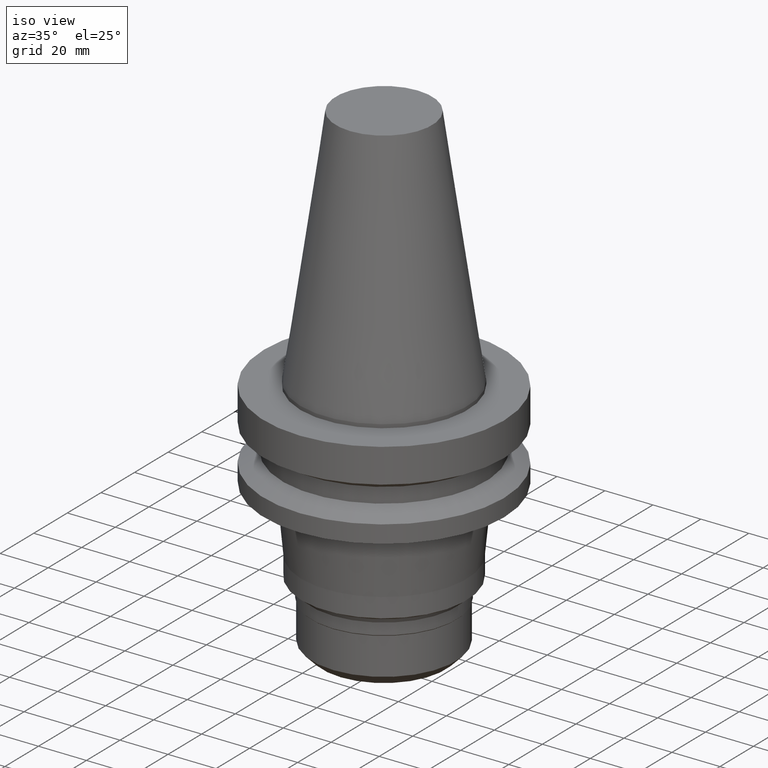
[diagram: clean part render]
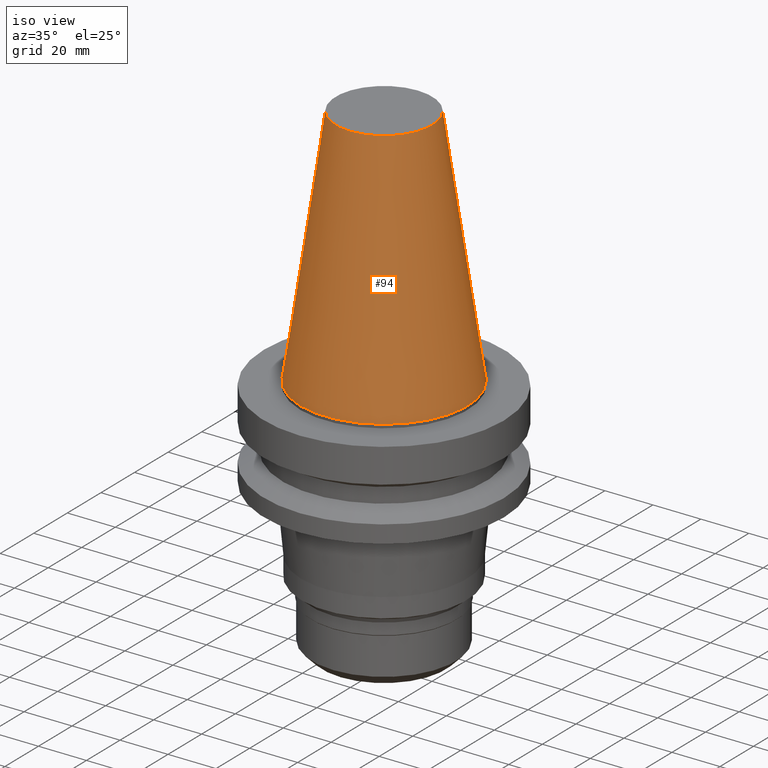
[diagram: tour spotlight — one face highlighted and labeled with its STEP entity id]
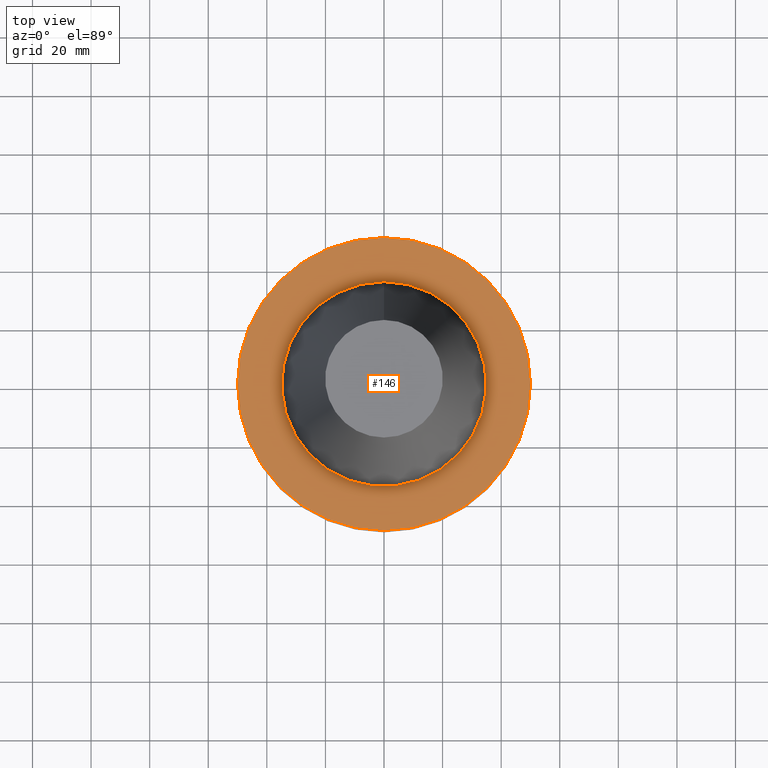
[diagram: tour spotlight — one face highlighted and labeled with its STEP entity id]
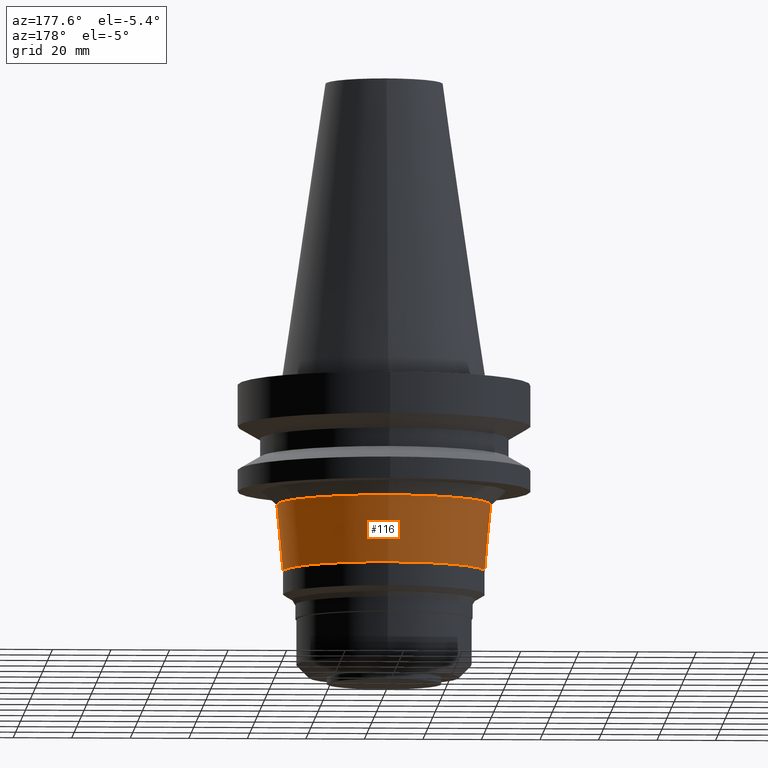
[diagram: tour spotlight — one face highlighted and labeled with its STEP entity id]
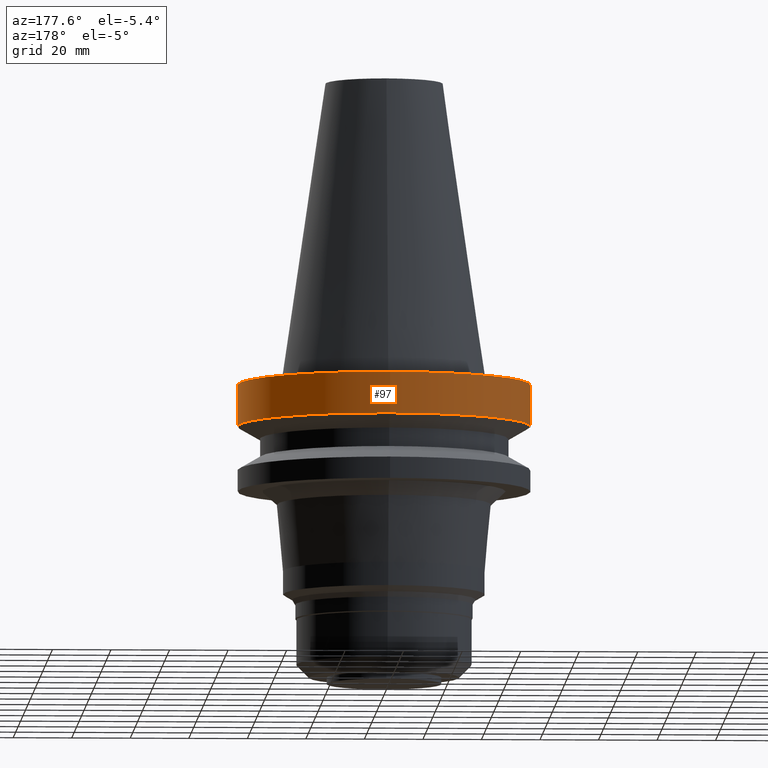
[diagram: tour spotlight — one face highlighted and labeled with its STEP entity id]
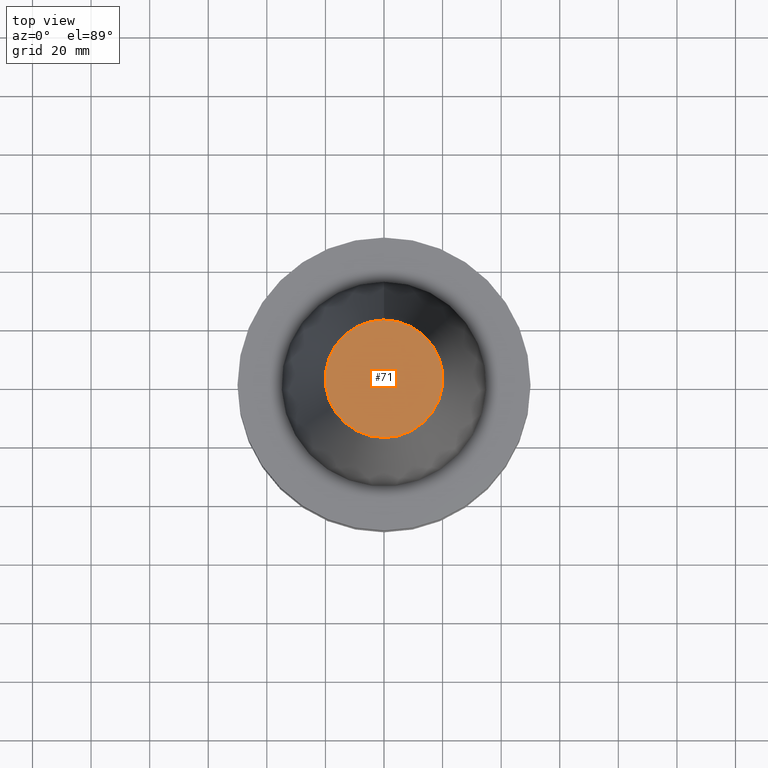
[diagram: tour spotlight — one face highlighted and labeled with its STEP entity id]
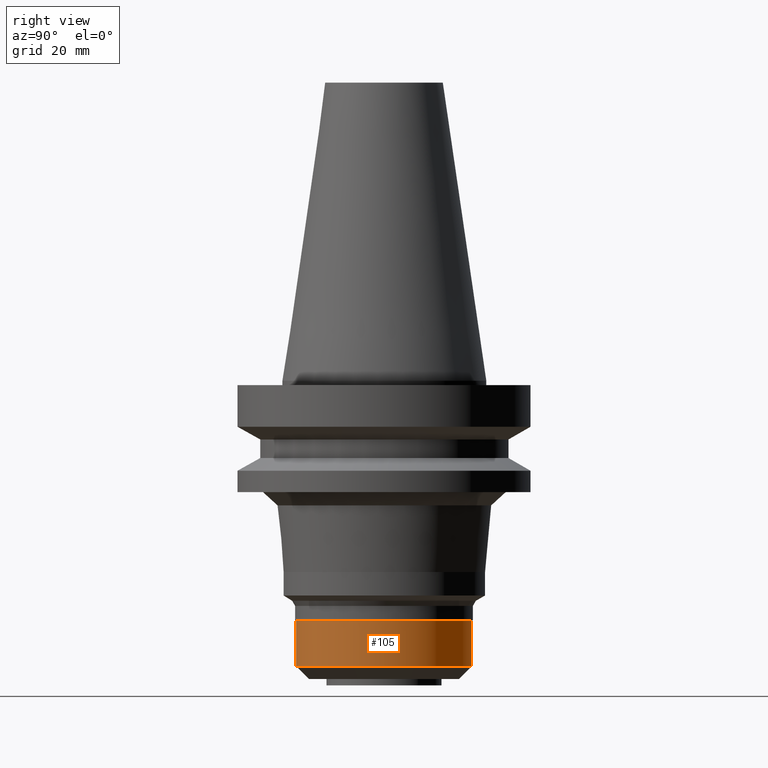
[diagram: tour spotlight — one face highlighted and labeled with its STEP entity id]
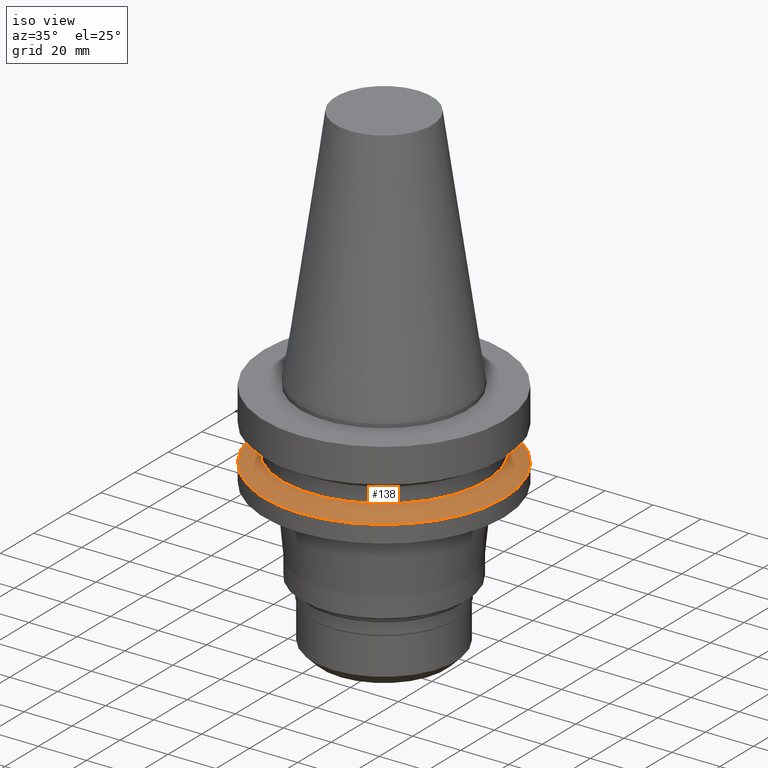
[diagram: tour spotlight — one face highlighted and labeled with its STEP entity id]
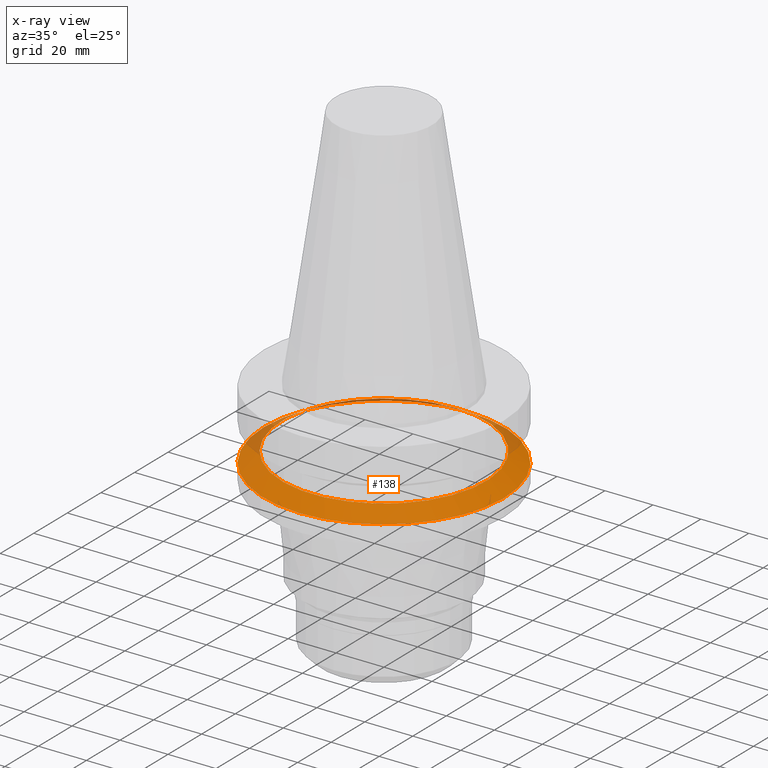
[diagram: x-ray of the same camera — body ghosted, this tour face saturated]
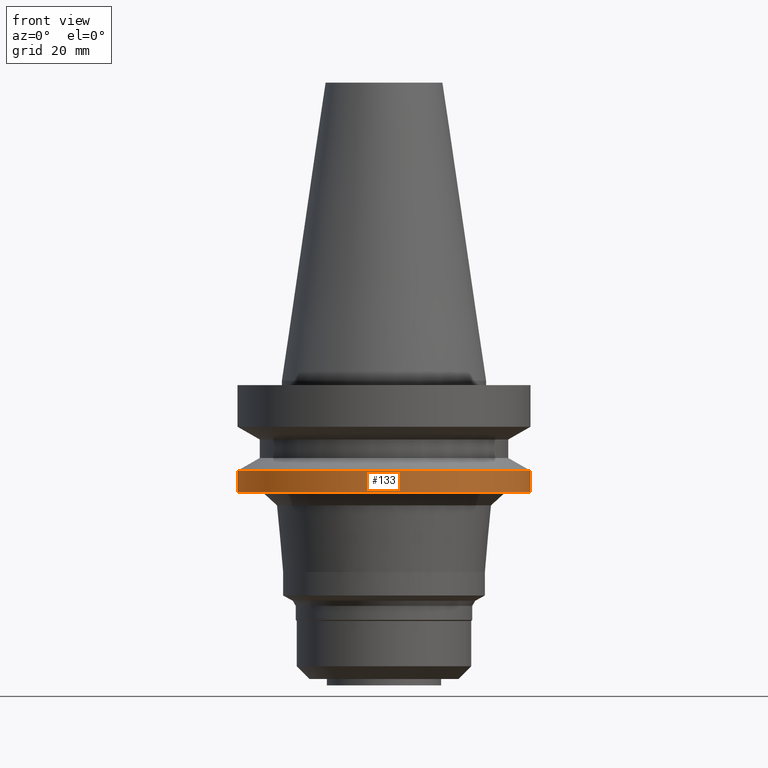
[diagram: tour spotlight — one face highlighted and labeled with its STEP entity id]
A machine part: a face-by-face anatomy tour. The part has 22 B-rep faces; the first image is the clean iso view, then the 8 largest visible faces are spotlighted one at a time (largest first), each with its STEP entity span.

Face 1 — iso view, entity #94. In plain terms, the highlighted conical surface has half-angle 8.297 deg.
Definition (entity closure, byte-faithful):
#86=EDGE_CURVE('Unnamed[1]',#222,#222,#223,.T.);
#94=ADVANCED_FACE('Unnamed[1]',(#232,#233),#234,.T.);
#135=EDGE_CURVE('Unnamed[1]',#299,#299,#300,.T.);
#222=VERTEX_POINT('',#411);
#223=CIRCLE('',#412,20.0791666651884);
#232=FACE_BOUND('',#423,.T.);
#233=FACE_BOUND('',#424,.T.);
#234=CONICAL_SURFACE('',#425,27.5020833325942,0.144812498253157);
#299=VERTEX_POINT('',#506);
#300=CIRCLE('',#507,34.925);
#411=CARTESIAN_POINT('',(-6.23345220766003E-015,20.0791666651884,101.8));
#412=AXIS2_PLACEMENT_3D('',#621,#622,#623);
#423=EDGE_LOOP('',(#629));
#424=EDGE_LOOP('',(#630));
#425=AXIS2_PLACEMENT_3D('',#631,#632,#633);
#506=CARTESIAN_POINT('',(-4.30483861169435E-031,34.925,4.27707894602213E-015));
#507=AXIS2_PLACEMENT_3D('',#706,#707,#708);
#621=CARTESIAN_POINT('',(-6.23345220766003E-015,-1.24669044153201E-014,101.8));
#622=DIRECTION('',(6.12323399573677E-017,1.22464679914713E-016,-1.0));
#623=DIRECTION('',(-1.23259516440767E-032,1.0,1.22464679914713E-016));
#629=ORIENTED_EDGE('',*,*,#135,.F.);
#630=ORIENTED_EDGE('',*,*,#86,.T.);
#631=CARTESIAN_POINT('',(-3.11672610383001E-015,-6.23345220766003E-015,50.9));
#632=DIRECTION('',(6.12323399573677E-017,1.22464679914678E-016,-1.0));
#633=DIRECTION('',(-1.232595164408E-032,1.0,1.22464679914678E-016));
#706=CARTESIAN_POINT('',(0.0,0.0,0.0));
#707=DIRECTION('',(6.12323399573677E-017,1.22464679914705E-016,-1.0));
#708=DIRECTION('',(-1.23259516440793E-032,1.0,1.22464679914705E-016));

Face 2 — top view, entity #146. In plain terms, the highlighted planar face has unit normal (-0, -0, 1).
Definition (entity closure, byte-faithful):
#76=EDGE_CURVE('Unnamed[1]',#207,#207,#208,.T.);
#146=ADVANCED_FACE('Unnamed[1]',(#316,#317),#318,.T.);
#177=EDGE_CURVE('Unnamed[1]',#366,#366,#367,.T.);
#207=VERTEX_POINT('',#391);
#208=CIRCLE('',#392,34.925);
#316=FACE_OUTER_BOUND('',#527,.T.);
#317=FACE_BOUND('',#528,.T.);
#318=PLANE('',#529);
#366=VERTEX_POINT('',#589);
#367=CIRCLE('',#590,50.0);
#391=CARTESIAN_POINT('',(9.18485099360511E-017,34.925,-1.5));
#392=AXIS2_PLACEMENT_3D('',#606,#607,#608);
#527=EDGE_LOOP('',(#725));
#528=EDGE_LOOP('',(#726));
#529=AXIS2_PLACEMENT_3D('',#727,#728,#729);
#589=CARTESIAN_POINT('',(9.18485099360509E-017,50.0,-1.49999999999999));
#590=AXIS2_PLACEMENT_3D('',#783,#784,#785);
#606=CARTESIAN_POINT('',(9.18485099360515E-017,1.83697019872103E-016,-1.5));
#607=DIRECTION('',(6.12323399573677E-017,1.22464679914705E-016,-1.0));
#608=DIRECTION('',(-1.23259516440793E-032,1.0,1.22464679914705E-016));
#725=ORIENTED_EDGE('',*,*,#177,.F.);
#726=ORIENTED_EDGE('',*,*,#76,.T.);
#727=CARTESIAN_POINT('',(9.1848509936051E-017,42.4625,-1.49999999999999));
#728=DIRECTION('',(-6.12323399573677E-017,-1.22464679914735E-016,1.0));
#729=DIRECTION('',(1.23259516440783E-032,-1.0,-1.22464679914735E-016));
#783=CARTESIAN_POINT('',(9.18485099360515E-017,1.83697019872103E-016,-1.5));
#784=DIRECTION('',(6.12323399573677E-017,1.22464679914672E-016,-1.0));
#785=DIRECTION('',(-1.23259516440783E-032,1.0,1.22464679914672E-016));

Face 3 — auxiliary view, entity #116. In plain terms, the highlighted conical surface has half-angle 5.232 deg.
Definition (entity closure, byte-faithful):
#82=EDGE_CURVE('Unnamed[1]',#216,#216,#217,.T.);
#116=ADVANCED_FACE('Unnamed[1]',(#267,#268),#269,.T.);
#156=EDGE_CURVE('Unnamed[1]',#332,#332,#333,.T.);
#216=VERTEX_POINT('',#403);
#217=CIRCLE('',#404,36.5837822119292);
#267=FACE_BOUND('',#467,.T.);
#268=FACE_BOUND('',#468,.T.);
#269=CONICAL_SURFACE('',#469,35.5418911059647,0.0913203890861967);
#332=VERTEX_POINT('',#547);
#333=CIRCLE('',#548,34.5000000000001);
#403=CARTESIAN_POINT('',(2.60513591930226E-015,36.5837822119292,-42.5450982457318));
#404=AXIS2_PLACEMENT_3D('',#615,#616,#617);
#467=EDGE_LOOP('',(#668));
#468=EDGE_LOOP('',(#669));
#469=AXIS2_PLACEMENT_3D('',#670,#671,#672);
#547=CARTESIAN_POINT('',(3.99847179921601E-015,34.5000000000001,-65.2999999999985));
#548=AXIS2_PLACEMENT_3D('',#744,#745,#746);
#615=CARTESIAN_POINT('',(2.60513591930226E-015,5.21027183860451E-015,-42.5450982457318));
#616=DIRECTION('',(6.12323399573676E-017,1.22464679914769E-016,-1.0));
#617=DIRECTION('',(-1.23259516440805E-032,1.0,1.22464679914769E-016));
#668=ORIENTED_EDGE('',*,*,#156,.F.);
#669=ORIENTED_EDGE('',*,*,#82,.T.);
#670=CARTESIAN_POINT('',(3.30180385925914E-015,6.60360771851827E-015,-53.9225491228651));
#671=DIRECTION('',(-6.12323399573677E-017,-1.22464679914698E-016,1.0));
#672=DIRECTION('',(-1.23259516440794E-032,1.0,1.22464679914698E-016));
#744=CARTESIAN_POINT('',(3.99847179921601E-015,7.99694359843203E-015,-65.2999999999985));
#745=DIRECTION('',(6.12323399573677E-017,1.22464679914716E-016,-1.0));
#746=DIRECTION('',(-1.23259516440783E-032,1.0,1.22464679914716E-016));

Face 4 — auxiliary view, entity #97. In plain terms, the highlighted cylindrical surface (bore or boss wall) has radius 50 mm, axis along (0, 0, -1).
Definition (entity closure, byte-faithful):
#97=ADVANCED_FACE('Unnamed[1]',(#237,#238),#239,.T.);
#111=EDGE_CURVE('Unnamed[1]',#260,#260,#261,.T.);
#177=EDGE_CURVE('Unnamed[1]',#366,#366,#367,.T.);
#237=FACE_BOUND('',#429,.T.);
#238=FACE_BOUND('',#430,.T.);
#239=CYLINDRICAL_SURFACE('',#431,50.0);
#260=VERTEX_POINT('',#458);
#261=CIRCLE('',#459,50.0);
#366=VERTEX_POINT('',#589);
#367=CIRCLE('',#590,50.0);
#429=EDGE_LOOP('',(#635));
#430=EDGE_LOOP('',(#636));
#431=AXIS2_PLACEMENT_3D('',#637,#638,#639);
#458=CARTESIAN_POINT('',(9.61347737330674E-016,50.0,-15.7));
#459=AXIS2_PLACEMENT_3D('',#661,#662,#663);
#589=CARTESIAN_POINT('',(9.18485099360509E-017,50.0,-1.49999999999999));
#590=AXIS2_PLACEMENT_3D('',#783,#784,#785);
#635=ORIENTED_EDGE('',*,*,#111,.F.);
#636=ORIENTED_EDGE('',*,*,#177,.T.);
#637=CARTESIAN_POINT('',(5.26598123633363E-016,1.05319624726673E-015,-8.60000000000002));
#638=DIRECTION('',(6.12323399573677E-017,1.22464679914672E-016,-1.0));
#639=DIRECTION('',(-1.23259516440783E-032,1.0,1.22464679914672E-016));
#661=CARTESIAN_POINT('',(9.61347737330675E-016,1.92269547466135E-015,-15.7));
#662=DIRECTION('',(6.12323399573677E-017,1.22464679914672E-016,-1.0));
#663=DIRECTION('',(-1.23259516440783E-032,1.0,1.22464679914672E-016));
#783=CARTESIAN_POINT('',(9.18485099360515E-017,1.83697019872103E-016,-1.5));
#784=DIRECTION('',(6.12323399573677E-017,1.22464679914672E-016,-1.0));
#785=DIRECTION('',(-1.23259516440783E-032,1.0,1.22464679914672E-016));

Face 5 — top view, entity #71. In plain terms, the highlighted planar face has unit normal (-0, -0, 1).
Definition (entity closure, byte-faithful):
#71=ADVANCED_FACE('Unnamed[1]',(#199),#200,.T.);
#86=EDGE_CURVE('Unnamed[1]',#222,#222,#223,.T.);
#199=FACE_OUTER_BOUND('',#381,.T.);
#200=PLANE('',#382);
#222=VERTEX_POINT('',#411);
#223=CIRCLE('',#412,20.0791666651884);
#381=EDGE_LOOP('',(#596));
#382=AXIS2_PLACEMENT_3D('',#597,#598,#599);
#411=CARTESIAN_POINT('',(-6.23345220766003E-015,20.0791666651884,101.8));
#412=AXIS2_PLACEMENT_3D('',#621,#622,#623);
#596=ORIENTED_EDGE('',*,*,#86,.F.);
#597=CARTESIAN_POINT('',(-6.23345220766003E-015,10.0395833325942,101.8));
#598=DIRECTION('',(-6.12323399573677E-017,-1.22464679914735E-016,1.0));
#599=DIRECTION('',(1.23259516440783E-032,-1.0,-1.22464679914735E-016));
#621=CARTESIAN_POINT('',(-6.23345220766003E-015,-1.24669044153201E-014,101.8));
#622=DIRECTION('',(6.12323399573677E-017,1.22464679914713E-016,-1.0));
#623=DIRECTION('',(-1.23259516440767E-032,1.0,1.22464679914713E-016));

Face 6 — right view, entity #105. In plain terms, the highlighted cylindrical surface (bore or boss wall) has radius 30 mm, axis along (0, 0, -1).
Definition (entity closure, byte-faithful):
#80=EDGE_CURVE('Unnamed[1]',#213,#213,#214,.T.);
#105=ADVANCED_FACE('Unnamed[1]',(#250,#251),#252,.T.);
#158=EDGE_CURVE('Unnamed[1]',#335,#335,#336,.T.);
#213=VERTEX_POINT('',#399);
#214=CIRCLE('',#400,30.0000000000001);
#250=FACE_BOUND('',#445,.T.);
#251=FACE_BOUND('',#446,.T.);
#252=CYLINDRICAL_SURFACE('',#447,30.0000000000001);
#335=VERTEX_POINT('',#551);
#336=CIRCLE('',#552,30.0);
#399=CARTESIAN_POINT('',(5.02080716863011E-015,30.0000000000001,-81.9960036171374));
#400=AXIS2_PLACEMENT_3D('',#612,#613,#614);
#445=EDGE_LOOP('',(#650));
#446=EDGE_LOOP('',(#651));
#447=AXIS2_PLACEMENT_3D('',#652,#653,#654);
#551=CARTESIAN_POINT('',(5.96742133217014E-015,30.0,-97.4553860970345));
#552=AXIS2_PLACEMENT_3D('',#747,#748,#749);
#612=CARTESIAN_POINT('',(5.02080716863011E-015,1.00416143372602E-014,-81.9960036171374));
#613=DIRECTION('',(6.12323399573677E-017,1.22464679914693E-016,-1.0));
#614=DIRECTION('',(-1.23259516440783E-032,1.0,1.22464679914693E-016));
#650=ORIENTED_EDGE('',*,*,#158,.F.);
#651=ORIENTED_EDGE('',*,*,#80,.T.);
#652=CARTESIAN_POINT('',(5.49411425040012E-015,1.09882285008002E-014,-89.725694857086));
#653=DIRECTION('',(6.12323399573677E-017,1.22464679914693E-016,-1.0));
#654=DIRECTION('',(-1.23259516440783E-032,1.0,1.22464679914693E-016));
#747=CARTESIAN_POINT('',(5.96742133217014E-015,1.19348426643403E-014,-97.4553860970345));
#748=DIRECTION('',(6.12323399573677E-017,1.22464679914693E-016,-1.0));
#749=DIRECTION('',(-1.23259516440783E-032,1.0,1.22464679914693E-016));

Face 7 — iso view, entity #138. An x-ray twin of the same camera follows (body ghosted, this face saturated) — the face is partly hidden behind the body. In plain terms, the highlighted conical surface has half-angle 60 deg.
Definition (entity closure, byte-faithful):
#138=ADVANCED_FACE('Unnamed[1]',(#303,#304),#305,.T.);
#140=EDGE_CURVE('Unnamed[1]',#307,#307,#308,.T.);
#154=EDGE_CURVE('Unnamed[1]',#329,#329,#330,.T.);
#303=FACE_BOUND('',#511,.T.);
#304=FACE_BOUND('',#512,.T.);
#305=CONICAL_SURFACE('',#513,46.25,1.04719755108882);
#307=VERTEX_POINT('',#516);
#308=CIRCLE('',#517,42.5);
#329=VERTEX_POINT('',#543);
#330=CIRCLE('',#544,50.0);
#511=EDGE_LOOP('',(#710));
#512=EDGE_LOOP('',(#711));
#513=AXIS2_PLACEMENT_3D('',#712,#713,#714);
#516=CARTESIAN_POINT('',(1.61468902694397E-015,42.5,-26.3698729800001));
#517=AXIS2_PLACEMENT_3D('',#715,#716,#717);
#543=CARTESIAN_POINT('',(1.87983283669119E-015,50.0,-30.7000000000001));
#544=AXIS2_PLACEMENT_3D('',#741,#742,#743);
#710=ORIENTED_EDGE('',*,*,#154,.F.);
#711=ORIENTED_EDGE('',*,*,#140,.T.);
#712=CARTESIAN_POINT('',(1.74726093181758E-015,3.49452186363516E-015,-28.5349364900001));
#713=DIRECTION('',(6.12323399573676E-017,1.22464679914748E-016,-1.0));
#714=DIRECTION('',(-1.23259516440783E-032,1.0,1.22464679914748E-016));
#715=CARTESIAN_POINT('',(1.61468902694397E-015,3.22937805388794E-015,-26.3698729800001));
#716=DIRECTION('',(6.12323399573677E-017,1.22464679914763E-016,-1.0));
#717=DIRECTION('',(-1.23259516440783E-032,1.0,1.22464679914763E-016));
#741=CARTESIAN_POINT('',(1.87983283669119E-015,3.75966567338238E-015,-30.7000000000001));
#742=DIRECTION('',(6.12323399573677E-017,1.22464679914672E-016,-1.0));
#743=DIRECTION('',(-1.23259516440783E-032,1.0,1.22464679914672E-016));

Face 8 — front view, entity #133. In plain terms, the highlighted cylindrical surface (bore or boss wall) has radius 50 mm, axis along (0, 0, -1).
Definition (entity closure, byte-faithful):
#84=EDGE_CURVE('Unnamed[1]',#219,#219,#220,.T.);
#133=ADVANCED_FACE('Unnamed[1]',(#295,#296),#297,.T.);
#154=EDGE_CURVE('Unnamed[1]',#329,#329,#330,.T.);
#219=VERTEX_POINT('',#407);
#220=CIRCLE('',#408,50.0);
#295=FACE_BOUND('',#501,.T.);
#296=FACE_BOUND('',#502,.T.);
#297=CYLINDRICAL_SURFACE('',#503,50.0);
#329=VERTEX_POINT('',#543);
#330=CIRCLE('',#544,50.0);
#407=CARTESIAN_POINT('',(2.32682891837996E-015,50.0,-37.9999999999998));
#408=AXIS2_PLACEMENT_3D('',#618,#619,#620);
#501=EDGE_LOOP('',(#701));
#502=EDGE_LOOP('',(#702));
#503=AXIS2_PLACEMENT_3D('',#703,#704,#705);
#543=CARTESIAN_POINT('',(1.87983283669119E-015,50.0,-30.7000000000001));
#544=AXIS2_PLACEMENT_3D('',#741,#742,#743);
#618=CARTESIAN_POINT('',(2.32682891837996E-015,4.65365783675992E-015,-37.9999999999998));
#619=DIRECTION('',(6.12323399573677E-017,1.22464679914672E-016,-1.0));
#620=DIRECTION('',(-1.23259516440783E-032,1.0,1.22464679914672E-016));
#701=ORIENTED_EDGE('',*,*,#84,.F.);
#702=ORIENTED_EDGE('',*,*,#154,.T.);
#703=CARTESIAN_POINT('',(2.10333087753557E-015,4.20666175507115E-015,-34.3499999999999));
#704=DIRECTION('',(6.12323399573677E-017,1.22464679914672E-016,-1.0));
#705=DIRECTION('',(-1.23259516440783E-032,1.0,1.22464679914672E-016));
#741=CARTESIAN_POINT('',(1.87983283669119E-015,3.75966567338238E-015,-30.7000000000001));
#742=DIRECTION('',(6.12323399573677E-017,1.22464679914672E-016,-1.0));
#743=DIRECTION('',(-1.23259516440783E-032,1.0,1.22464679914672E-016));